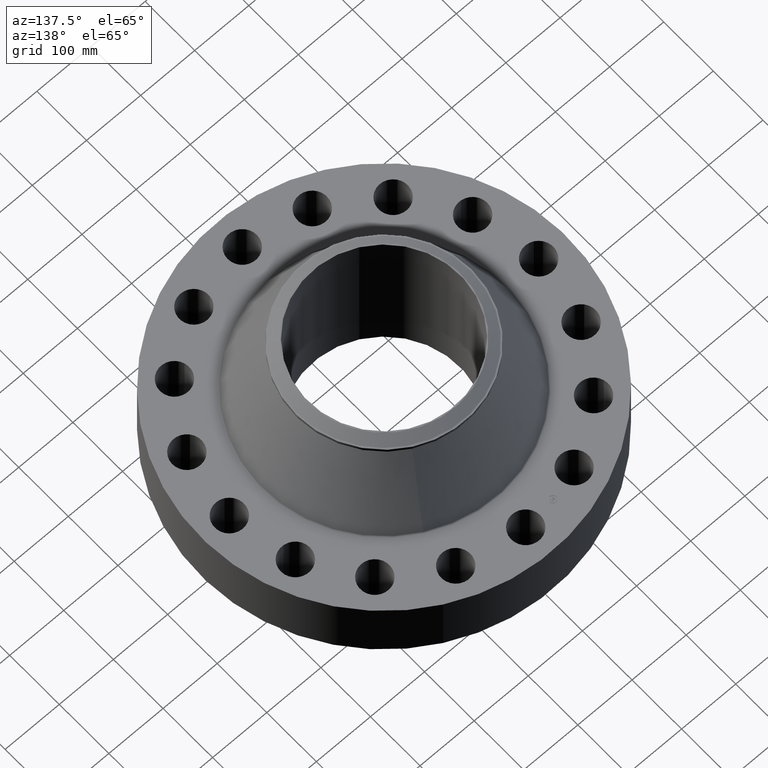
[diagram: clean part render]
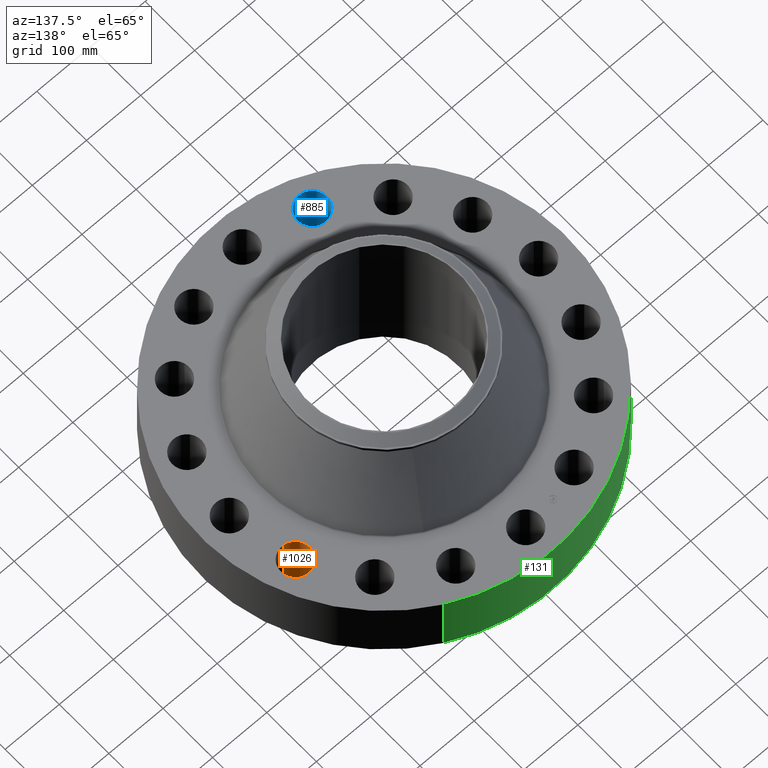
[diagram: same view with three faces highlighted in distinct colors, each labeled with its STEP entity id]
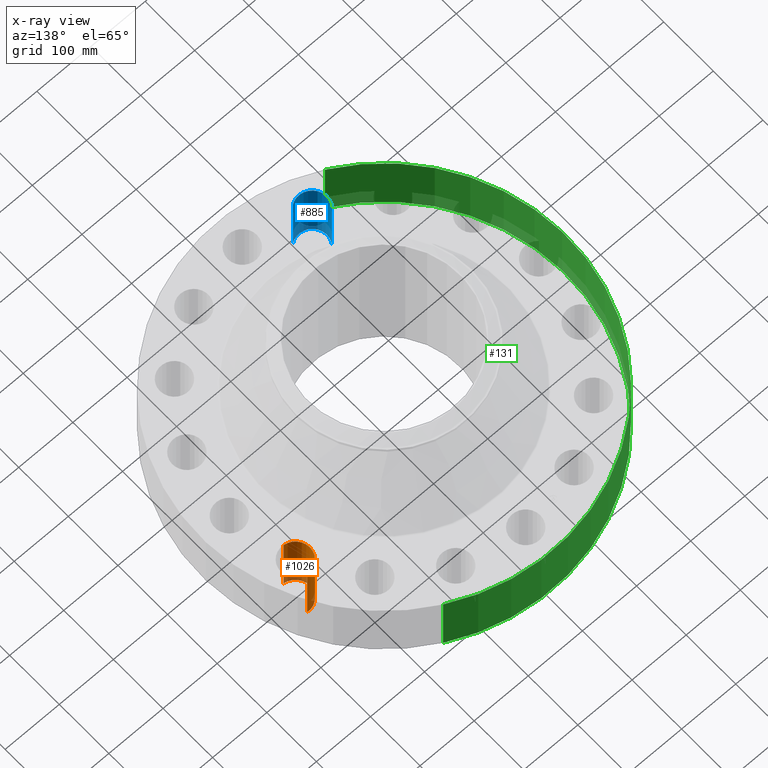
[diagram: x-ray of the same camera — body ghosted, the three highlighted faces saturated]
A machine part, auxiliary view with three faces highlighted in distinct colors.
The next image is the same camera in x-ray (body ghosted, the three faces saturated) — at least one of them is partly hidden behind the body in this view.
Their STEP definitions:

[orange] entity #1026 — the highlighted cylindrical surface (edge-blend (fillet) strip) has radius 26.924 mm, axis along (0, -0, -1).
#631=AXIS2_PLACEMENT_3D('Circle Axis2P3D',#629,#630,$) ;
#987=AXIS2_PLACEMENT_3D('Cylinder Axis2P3D',#984,#985,#986) ;
#1017=AXIS2_PLACEMENT_3D('Circle Axis2P3D',#1015,#1016,$) ;
#624=CARTESIAN_POINT('Vertex',(10.5071655844,5.35909231849,0.)) ;
#626=CARTESIAN_POINT('Vertex',(10.2801238972,3.25128490976,0.)) ;
#629=CARTESIAN_POINT('Axis2P3D Location',(10.3936447408,4.30518861412,0.)) ;
#984=CARTESIAN_POINT('Axis2P3D Location',(10.3936447408,4.30518861412,4.87606299215)) ;
#989=CARTESIAN_POINT('Line Origine',(10.5071655844,5.35909231849,2.44000000001)) ;
#993=CARTESIAN_POINT('Vertex',(10.5071655844,5.35909231849,4.88000000002)) ;
#996=CARTESIAN_POINT('Line Origine',(10.2801238972,3.25128490976,2.44000000001)) ;
#1000=CARTESIAN_POINT('Vertex',(10.2801238972,3.25128490976,4.88000000002)) ;
#1015=CARTESIAN_POINT('Axis2P3D Location',(10.3936447408,4.30518861412,4.88000000002)) ;
#630=DIRECTION('Axis2P3D Direction',(0.,0.,-0.0393700787402)) ;
#985=DIRECTION('Axis2P3D Direction',(0.,-0.,-0.0393700787402)) ;
#986=DIRECTION('Axis2P3D XDirection',(-0.00421634391778,-0.0391436526652,0.)) ;
#990=DIRECTION('Vector Direction',(0.,0.,-0.0393700787402)) ;
#997=DIRECTION('Vector Direction',(0.,0.,-0.0393700787402)) ;
#1016=DIRECTION('Axis2P3D Direction',(0.,-0.,-0.0393700787402)) ;
#991=VECTOR('Line Direction',#990,0.0393700787402) ;
#998=VECTOR('Line Direction',#997,0.0393700787402) ;
#1021=ORIENTED_EDGE('',*,*,#1002,.F.) ;
#1022=ORIENTED_EDGE('',*,*,#633,.T.) ;
#1023=ORIENTED_EDGE('',*,*,#995,.T.) ;
#1024=ORIENTED_EDGE('',*,*,#1019,.F.) ;
#1026=ADVANCED_FACE('PartBody',(#1025),#988,.F.) ;
#632=CIRCLE('generated circle',#631,1.06) ;
#1018=CIRCLE('generated circle',#1017,1.06) ;
#988=CYLINDRICAL_SURFACE('generated cylinder',#987,1.06) ;
#633=EDGE_CURVE('',#627,#625,#632,.T.) ;
#995=EDGE_CURVE('',#625,#994,#992,.F.) ;
#1002=EDGE_CURVE('',#627,#1001,#999,.F.) ;
#1019=EDGE_CURVE('',#1001,#994,#1018,.T.) ;
#1020=EDGE_LOOP('',(#1021,#1022,#1023,#1024)) ;
#1025=FACE_OUTER_BOUND('',#1020,.T.) ;
#992=LINE('Line',#989,#991) ;
#999=LINE('Line',#996,#998) ;
#625=VERTEX_POINT('',#624) ;
#627=VERTEX_POINT('',#626) ;
#994=VERTEX_POINT('',#993) ;
#1001=VERTEX_POINT('',#1000) ;

[blue] entity #885 — the highlighted cylindrical surface (edge-blend (fillet) strip) has radius 26.924 mm, axis along (0, 0, -1).
#730=AXIS2_PLACEMENT_3D('Circle Axis2P3D',#728,#729,$) ;
#858=AXIS2_PLACEMENT_3D('Cylinder Axis2P3D',#855,#856,#857) ;
#876=AXIS2_PLACEMENT_3D('Circle Axis2P3D',#874,#875,$) ;
#728=CARTESIAN_POINT('Axis2P3D Location',(-4.30518861412,-10.3936447408,0.)) ;
#732=CARTESIAN_POINT('Vertex',(-3.6402375164,-11.2191385552,0.)) ;
#734=CARTESIAN_POINT('Vertex',(-4.97013971185,-9.56815092638,0.)) ;
#855=CARTESIAN_POINT('Axis2P3D Location',(-4.30518861412,-10.3936447408,4.87606299215)) ;
#860=CARTESIAN_POINT('Line Origine',(-3.6402375164,-11.2191385552,2.44000000001)) ;
#864=CARTESIAN_POINT('Vertex',(-3.6402375164,-11.2191385552,4.88000000002)) ;
#867=CARTESIAN_POINT('Line Origine',(-4.97013971185,-9.56815092638,2.44000000001)) ;
#871=CARTESIAN_POINT('Vertex',(-4.97013971185,-9.56815092638,4.88000000002)) ;
#874=CARTESIAN_POINT('Axis2P3D Location',(-4.30518861412,-10.3936447408,4.88000000002)) ;
#729=DIRECTION('Axis2P3D Direction',(0.,0.,-0.0393700787402)) ;
#856=DIRECTION('Axis2P3D Direction',(0.,0.,-0.0393700787402)) ;
#857=DIRECTION('Axis2P3D XDirection',(-0.0246973368639,0.030660147616,0.)) ;
#861=DIRECTION('Vector Direction',(0.,0.,-0.0393700787402)) ;
#868=DIRECTION('Vector Direction',(0.,0.,-0.0393700787402)) ;
#875=DIRECTION('Axis2P3D Direction',(0.,0.,-0.0393700787402)) ;
#862=VECTOR('Line Direction',#861,0.0393700787402) ;
#869=VECTOR('Line Direction',#868,0.0393700787402) ;
#880=ORIENTED_EDGE('',*,*,#866,.F.) ;
#881=ORIENTED_EDGE('',*,*,#736,.T.) ;
#882=ORIENTED_EDGE('',*,*,#873,.T.) ;
#883=ORIENTED_EDGE('',*,*,#878,.F.) ;
#885=ADVANCED_FACE('PartBody',(#884),#859,.F.) ;
#731=CIRCLE('generated circle',#730,1.06) ;
#877=CIRCLE('generated circle',#876,1.06) ;
#859=CYLINDRICAL_SURFACE('generated cylinder',#858,1.06) ;
#736=EDGE_CURVE('',#733,#735,#731,.T.) ;
#866=EDGE_CURVE('',#733,#865,#863,.F.) ;
#873=EDGE_CURVE('',#735,#872,#870,.F.) ;
#878=EDGE_CURVE('',#865,#872,#877,.T.) ;
#879=EDGE_LOOP('',(#880,#881,#882,#883)) ;
#884=FACE_OUTER_BOUND('',#879,.T.) ;
#863=LINE('Line',#860,#862) ;
#870=LINE('Line',#867,#869) ;
#733=VERTEX_POINT('',#732) ;
#735=VERTEX_POINT('',#734) ;
#865=VERTEX_POINT('',#864) ;
#872=VERTEX_POINT('',#871) ;

[green] entity #131 — the highlighted cylindrical surface (partial cylindrical patch) has radius 336.55 mm, axis along (0, 0, -1).
#95=AXIS2_PLACEMENT_3D('Cylinder Axis2P3D',#92,#93,#94) ;
#99=AXIS2_PLACEMENT_3D('Circle Axis2P3D',#97,#98,$) ;
#115=AXIS2_PLACEMENT_3D('Circle Axis2P3D',#113,#114,$) ;
#92=CARTESIAN_POINT('Axis2P3D Location',(0.,0.,5.27850000002)) ;
#97=CARTESIAN_POINT('Axis2P3D Location',(0.,0.,0.)) ;
#101=CARTESIAN_POINT('Vertex',(-6.35238838653,-11.6279689451,0.)) ;
#103=CARTESIAN_POINT('Vertex',(6.35238838653,11.6279689451,0.)) ;
#106=CARTESIAN_POINT('Line Origine',(-6.35238838653,-11.6279689451,2.44000000001)) ;
#110=CARTESIAN_POINT('Vertex',(-6.35238838653,-11.6279689451,4.88000000002)) ;
#113=CARTESIAN_POINT('Axis2P3D Location',(0.,0.,4.88000000002)) ;
#117=CARTESIAN_POINT('Vertex',(6.35238838653,11.6279689451,4.88000000002)) ;
#120=CARTESIAN_POINT('Line Origine',(6.35238838653,11.6279689451,2.44000000001)) ;
#93=DIRECTION('Axis2P3D Direction',(0.,0.,-0.0393700787402)) ;
#94=DIRECTION('Axis2P3D XDirection',(0.0188750212049,0.0345504945626,0.)) ;
#98=DIRECTION('Axis2P3D Direction',(0.,0.,-0.0393700787402)) ;
#107=DIRECTION('Vector Direction',(0.,0.,-0.0393700787402)) ;
#114=DIRECTION('Axis2P3D Direction',(0.,0.,-0.0393700787402)) ;
#121=DIRECTION('Vector Direction',(0.,0.,-0.0393700787402)) ;
#108=VECTOR('Line Direction',#107,0.0393700787402) ;
#122=VECTOR('Line Direction',#121,0.0393700787402) ;
#126=ORIENTED_EDGE('',*,*,#105,.F.) ;
#127=ORIENTED_EDGE('',*,*,#112,.T.) ;
#128=ORIENTED_EDGE('',*,*,#119,.T.) ;
#129=ORIENTED_EDGE('',*,*,#124,.F.) ;
#131=ADVANCED_FACE('PartBody',(#130),#96,.T.) ;
#100=CIRCLE('generated circle',#99,13.2500000001) ;
#116=CIRCLE('generated circle',#115,13.2500000001) ;
#96=CYLINDRICAL_SURFACE('generated cylinder',#95,13.2500000001) ;
#105=EDGE_CURVE('',#102,#104,#100,.T.) ;
#112=EDGE_CURVE('',#102,#111,#109,.F.) ;
#119=EDGE_CURVE('',#111,#118,#116,.T.) ;
#124=EDGE_CURVE('',#104,#118,#123,.F.) ;
#125=EDGE_LOOP('',(#126,#127,#128,#129)) ;
#130=FACE_OUTER_BOUND('',#125,.T.) ;
#109=LINE('Line',#106,#108) ;
#123=LINE('Line',#120,#122) ;
#102=VERTEX_POINT('',#101) ;
#104=VERTEX_POINT('',#103) ;
#111=VERTEX_POINT('',#110) ;
#118=VERTEX_POINT('',#117) ;